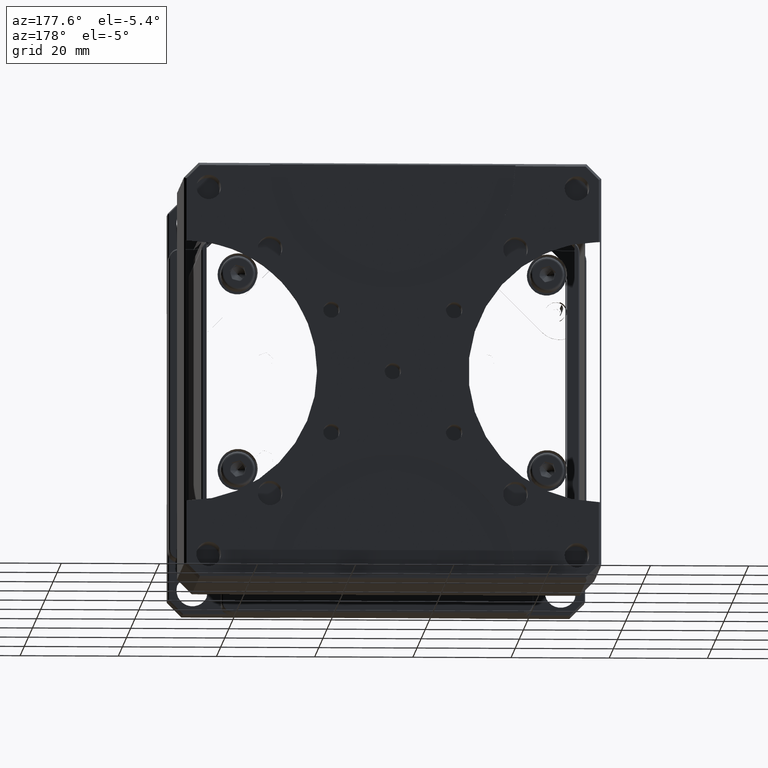
[diagram: clean part render]
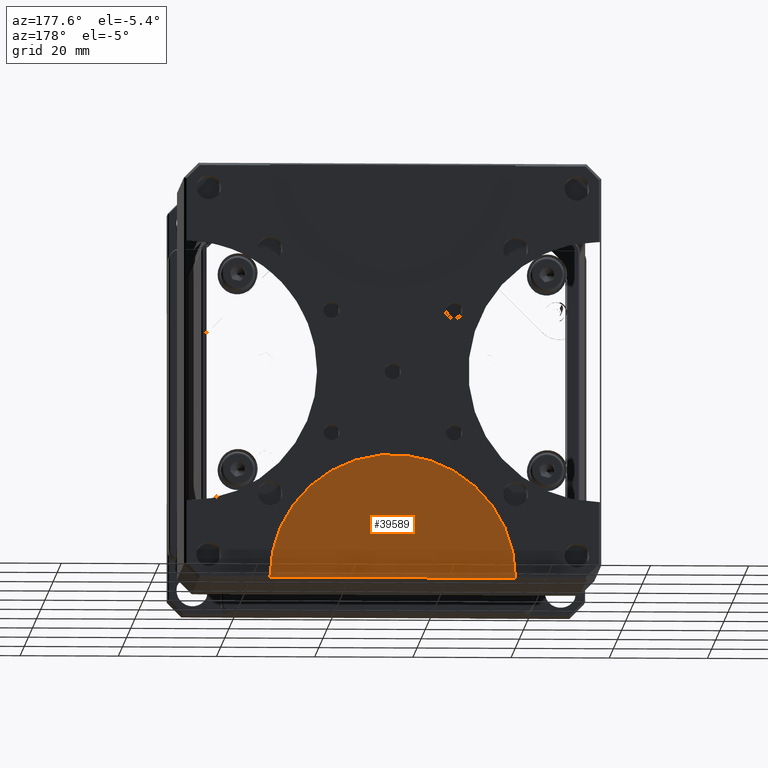
[diagram: same view with one face highlighted and labeled with its STEP entity id]
A machine part, auxiliary view. The second image highlights one B-rep face of the part: STEP entity #39589.
In plain terms, the highlighted planar face has unit normal (-0, 1, -0).
Its self-contained STEP definition (entity closure, byte-faithful):
#44 = ORIENTED_EDGE ( 'NONE', *, *, #41426, .F. ) ;
#1940 = AXIS2_PLACEMENT_3D ( 'NONE', #44855, #13214, #27319 ) ;
#2673 = CIRCLE ( 'NONE', #1940, 24.99999999999999289 ) ;
#2807 = CARTESIAN_POINT ( 'NONE',  ( 115.1744935043804077, 84.79999999999999716, -80.50000000000000000 ) ) ;
#4694 = EDGE_CURVE ( 'NONE', #32067, #7931, #2673, .T. ) ;
#7931 = VERTEX_POINT ( 'NONE', #28533 ) ;
#10075 = CIRCLE ( 'NONE', #15949, 24.99999999999999289 ) ;
#10099 = VERTEX_POINT ( 'NONE', #27257 ) ;
#10747 = EDGE_CURVE ( 'NONE', #34646, #10099, #32739, .T. ) ;
#11594 = CARTESIAN_POINT ( 'NONE',  ( 47.67449350438050004, 84.79999999999999716, -80.69999999999998863 ) ) ;
#11698 = CARTESIAN_POINT ( 'NONE',  ( 90.17449350438039346, 84.79999999999999716, -80.50000000000000000 ) ) ;
#13214 = DIRECTION ( 'NONE',  ( -5.551115123125780730E-16, 1.000000000000000000, -2.736741535727435062E-16 ) ) ;
#15949 = AXIS2_PLACEMENT_3D ( 'NONE', #26992, #23073, #23524 ) ;
#19795 = AXIS2_PLACEMENT_3D ( 'NONE', #11698, #43108, #25336 ) ;
#20449 = ORIENTED_EDGE ( 'NONE', *, *, #10747, .T. ) ;
#21545 = DIRECTION ( 'NONE',  ( 1.000000000000000000, 3.608224830031755305E-16, 5.974065025410860623E-16 ) ) ;
#23073 = DIRECTION ( 'NONE',  ( -5.551115123125780730E-16, 1.000000000000000000, -2.736741535727435062E-16 ) ) ;
#23524 = DIRECTION ( 'NONE',  ( -1.000000000000000000, -5.551115123125784674E-16, -5.551115123125784674E-16 ) ) ;
#25336 = DIRECTION ( 'NONE',  ( 1.000000000000000000, 3.608224830031755305E-16, 0.000000000000000000 ) ) ;
#26992 = CARTESIAN_POINT ( 'NONE',  ( 90.17449350438039346, 84.79999999999999716, -80.50000000000000000 ) ) ;
#27257 = CARTESIAN_POINT ( 'NONE',  ( 65.17449350438039346, 84.79999999999999716, -80.50000000000000000 ) ) ;
#27319 = DIRECTION ( 'NONE',  ( -1.000000000000000000, -5.551115123125784674E-16, -5.551115123125784674E-16 ) ) ;
#28533 = CARTESIAN_POINT ( 'NONE',  ( 115.1736934915799964, 84.79999999999999716, -80.69999999999998863 ) ) ;
#29142 = LINE ( 'NONE', #11594, #33625 ) ;
#29852 = DIRECTION ( 'NONE',  ( -5.551115123125780730E-16, 1.000000000000000000, -2.736741535727435062E-16 ) ) ;
#30082 = CARTESIAN_POINT ( 'NONE',  ( 90.17449350438039346, 84.79999999999999716, -80.50000000000000000 ) ) ;
#32067 = VERTEX_POINT ( 'NONE', #2807 ) ;
#32168 = EDGE_LOOP ( 'NONE', ( #20449, #34220, #44146, #44 ) ) ;
#32711 = FACE_OUTER_BOUND ( 'NONE', #32168, .T. ) ;
#32739 = CIRCLE ( 'NONE', #43065, 24.99999999999999289 ) ;
#33625 = VECTOR ( 'NONE', #21545, 1000.000000000000000 ) ;
#34220 = ORIENTED_EDGE ( 'NONE', *, *, #36088, .T. ) ;
#34561 = CARTESIAN_POINT ( 'NONE',  ( 65.17529351718089003, 84.79999999999999716, -80.69999999999998863 ) ) ;
#34646 = VERTEX_POINT ( 'NONE', #34561 ) ;
#36088 = EDGE_CURVE ( 'NONE', #10099, #32067, #10075, .T. ) ;
#39589 = ADVANCED_FACE ( 'NONE', ( #32711 ), #43564, .T. ) ;
#41426 = EDGE_CURVE ( 'NONE', #34646, #7931, #29142, .T. ) ;
#43065 = AXIS2_PLACEMENT_3D ( 'NONE', #30082, #29852, #43930 ) ;
#43108 = DIRECTION ( 'NONE',  ( -3.608224830031755305E-16, 1.000000000000000000, -2.736741535727435062E-16 ) ) ;
#43564 = PLANE ( 'NONE',  #19795 ) ;
#43930 = DIRECTION ( 'NONE',  ( -1.000000000000000000, -5.551115123125784674E-16, -5.551115123125784674E-16 ) ) ;
#44146 = ORIENTED_EDGE ( 'NONE', *, *, #4694, .T. ) ;
#44855 = CARTESIAN_POINT ( 'NONE',  ( 90.17449350438039346, 84.79999999999999716, -80.50000000000000000 ) ) ;